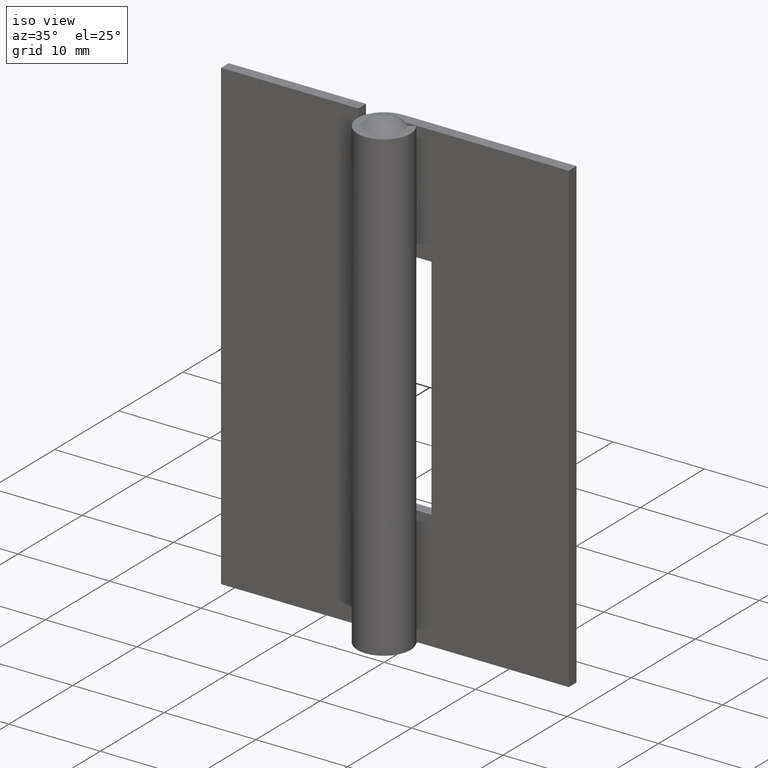
[diagram: clean part render]
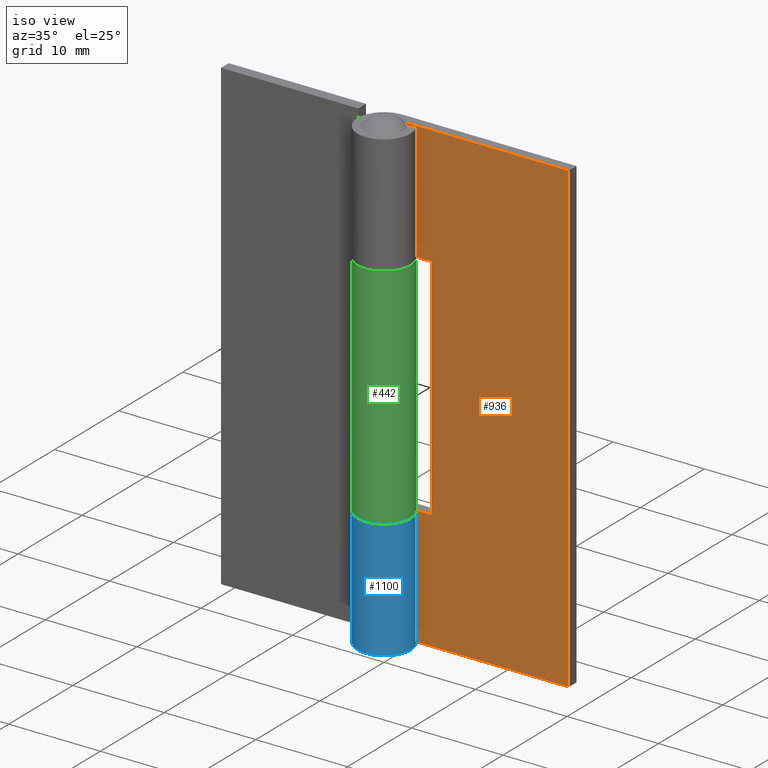
[diagram: same view with three faces highlighted in distinct colors, each labeled with its STEP entity id]
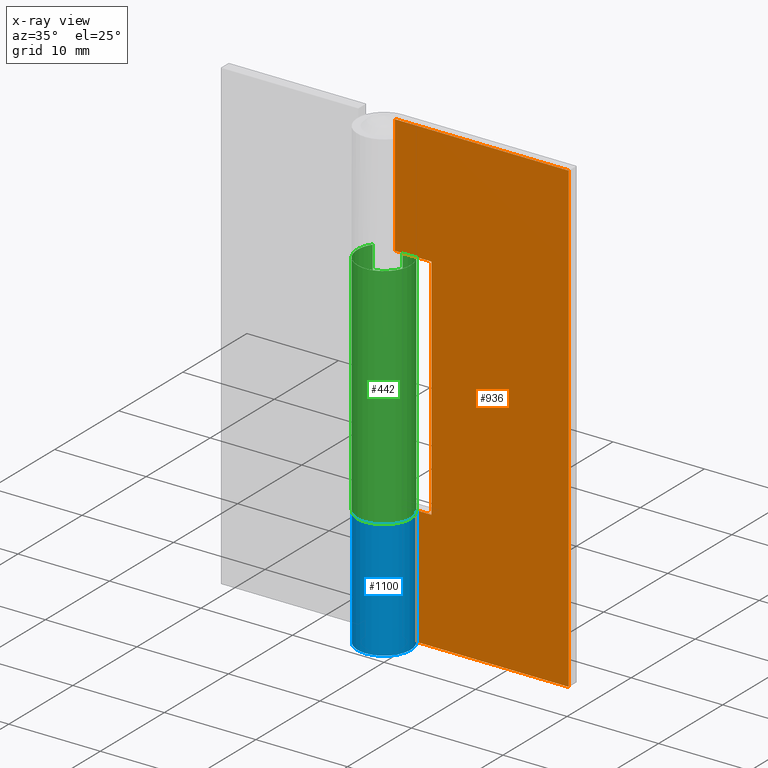
[diagram: x-ray of the same camera — body ghosted, the three highlighted faces saturated]
A machine part, iso view with three faces highlighted in distinct colors.
The next image is the same camera in x-ray (body ghosted, the three faces saturated) — at least one of them is partly hidden behind the body in this view.
Their STEP definitions:

[orange] entity #936 — the highlighted face is a freeform B-spline surface patch.
#475=CARTESIAN_POINT('',(4.0,1.700002000000030,38.0));
#476=VERTEX_POINT('',#475);
#482=CARTESIAN_POINT('',(-3.122772E-016,1.700002000000030,38.0));
#483=VERTEX_POINT('',#482);
#484=CARTESIAN_POINT('',(4.0,1.700002000000030,38.0));
#485=CARTESIAN_POINT('',(-3.122772E-016,1.700002000000030,38.0));
#486=QUASI_UNIFORM_CURVE('',1,(#484,#485),.UNSPECIFIED.,.F.,.U.);
#487=EDGE_CURVE('',#476,#483,#486,.T.);
#578=CARTESIAN_POINT('',(-3.122772E-016,1.700002000000030,13.0));
#579=VERTEX_POINT('',#578);
#610=CARTESIAN_POINT('',(4.0,1.700002000000000,13.0));
#611=VERTEX_POINT('',#610);
#612=CARTESIAN_POINT('',(-3.122772E-016,1.700002000000030,13.0));
#613=CARTESIAN_POINT('',(4.0,1.700002000000000,13.0));
#614=QUASI_UNIFORM_CURVE('',1,(#612,#613),.UNSPECIFIED.,.F.,.U.);
#615=EDGE_CURVE('',#579,#611,#614,.T.);
#672=CARTESIAN_POINT('',(4.0,1.700002000000000,13.0));
#673=CARTESIAN_POINT('',(4.0,1.700002000000030,38.0));
#674=QUASI_UNIFORM_CURVE('',1,(#672,#673),.UNSPECIFIED.,.F.,.U.);
#675=EDGE_CURVE('',#611,#476,#674,.T.);
#692=CARTESIAN_POINT('',(19.0,1.700002000000030,0.0));
#693=VERTEX_POINT('',#692);
#701=CARTESIAN_POINT('',(-3.122750E-016,1.700002000000030,0.0));
#702=VERTEX_POINT('',#701);
#703=CARTESIAN_POINT('',(-3.122750E-016,1.700002000000030,0.0));
#704=CARTESIAN_POINT('',(19.0,1.700002000000030,0.0));
#705=QUASI_UNIFORM_CURVE('',1,(#703,#704),.UNSPECIFIED.,.F.,.U.);
#706=EDGE_CURVE('',#702,#693,#705,.T.);
#798=CARTESIAN_POINT('',(19.0,1.700002000000030,51.0));
#799=VERTEX_POINT('',#798);
#854=CARTESIAN_POINT('',(-3.122750E-016,1.700002000000030,51.0));
#855=VERTEX_POINT('',#854);
#885=CARTESIAN_POINT('',(-3.122750E-016,1.700002000000030,51.0));
#886=CARTESIAN_POINT('',(19.0,1.700002000000030,51.0));
#887=QUASI_UNIFORM_CURVE('',1,(#885,#886),.UNSPECIFIED.,.F.,.U.);
#888=EDGE_CURVE('',#855,#799,#887,.T.);
#905=CARTESIAN_POINT('',(19.0,1.700002000000030,51.0));
#906=CARTESIAN_POINT('',(19.0,1.700002000000030,0.0));
#907=QUASI_UNIFORM_CURVE('',1,(#905,#906),.UNSPECIFIED.,.F.,.U.);
#908=EDGE_CURVE('',#799,#693,#907,.T.);
#913=CARTESIAN_POINT('',(-0.949049963174314,1.700002000000030,-2.547449901152113));
#914=CARTESIAN_POINT('',(-0.949049963174314,1.700002000000030,53.547451269078707));
#915=CARTESIAN_POINT('',(19.949050472794021,1.700002000000030,-2.547449901152113));
#916=CARTESIAN_POINT('',(19.949050472794021,1.700002000000030,53.547451269078707));
#917=B_SPLINE_SURFACE_WITH_KNOTS('',1,1,((#913,#915),(#914,#916)),.UNSPECIFIED.,.F.,.F.,.U.,(2,2),(2,2),(0.0,56.094901170230827),(0.0,20.898100435968342),.UNSPECIFIED.);
#918=ORIENTED_EDGE('',*,*,#615,.F.);
#919=CARTESIAN_POINT('',(-3.122772E-016,1.700002000000030,13.0));
#920=CARTESIAN_POINT('',(-3.122750E-016,1.700002000000030,0.0));
#921=QUASI_UNIFORM_CURVE('',1,(#919,#920),.UNSPECIFIED.,.F.,.U.);
#922=EDGE_CURVE('',#579,#702,#921,.T.);
#923=ORIENTED_EDGE('',*,*,#922,.T.);
#924=ORIENTED_EDGE('',*,*,#706,.T.);
#925=ORIENTED_EDGE('',*,*,#908,.F.);
#926=ORIENTED_EDGE('',*,*,#888,.F.);
#927=CARTESIAN_POINT('',(-3.122750E-016,1.700002000000030,51.0));
#928=CARTESIAN_POINT('',(-3.122772E-016,1.700002000000030,38.0));
#929=QUASI_UNIFORM_CURVE('',1,(#927,#928),.UNSPECIFIED.,.F.,.U.);
#930=EDGE_CURVE('',#855,#483,#929,.T.);
#931=ORIENTED_EDGE('',*,*,#930,.T.);
#932=ORIENTED_EDGE('',*,*,#487,.F.);
#933=ORIENTED_EDGE('',*,*,#675,.F.);
#934=EDGE_LOOP('',(#918,#923,#924,#925,#926,#931,#932,#933));
#935=FACE_OUTER_BOUND('',#934,.T.);
#936=ADVANCED_FACE('',(#935),#917,.F.);

[blue] entity #1100 — the highlighted face is a freeform B-spline surface patch.
#569=CARTESIAN_POINT('',(2.384848264526965,1.650003137932435,13.0));
#570=VERTEX_POINT('',#569);
#624=CARTESIAN_POINT('',(0.0,2.900002000000070,13.0));
#625=VERTEX_POINT('',#624);
#631=CARTESIAN_POINT('',(2.384848264526965,1.650003137932435,13.0));
#632=CARTESIAN_POINT('',(2.522004654141345,1.451888249637949,13.000000000000030));
#633=CARTESIAN_POINT('',(2.704318109931372,1.101944689802653,12.999999999999970));
#634=CARTESIAN_POINT('',(2.884073227500956,0.472520979689342,12.999999999999989));
#635=CARTESIAN_POINT('',(2.923030053144984,-0.123962480249850,13.000000000000020));
#636=CARTESIAN_POINT('',(2.824557369505076,-0.720943546939605,13.000000000000020));
#637=CARTESIAN_POINT('',(2.636508268491863,-1.252869674614439,13.0));
#638=CARTESIAN_POINT('',(2.362421354544872,-1.712994424705522,12.999999999999989));
#639=CARTESIAN_POINT('',(1.979899949458704,-2.140978547046611,13.000000000000030));
#640=CARTESIAN_POINT('',(1.565151092181875,-2.462663316129601,12.999999999999920));
#641=CARTESIAN_POINT('',(1.124272967912173,-2.685231130640672,13.000000000000149));
#642=CARTESIAN_POINT('',(0.684585380591554,-2.829432922296683,12.999999999999600));
#643=CARTESIAN_POINT('',(0.127952964714790,-2.923026046125490,13.000000000000091));
#644=CARTESIAN_POINT('',(-0.560158651346706,-2.880186473283973,13.000000000000769));
#645=CARTESIAN_POINT('',(-1.173375812541113,-2.672157819248188,12.999999999997851));
#646=CARTESIAN_POINT('',(-1.662635047320123,-2.392548799389065,13.000000000003750));
#647=CARTESIAN_POINT('',(-2.076640996064523,-2.054166158744519,12.999999999996810));
#648=CARTESIAN_POINT('',(-2.412277890825157,-1.637178526206611,13.000000000001190));
#649=CARTESIAN_POINT('',(-2.702435273693730,-1.107682361463748,12.999999999999639));
#650=CARTESIAN_POINT('',(-2.866404126051855,-0.575132793254161,13.000000000000259));
#651=CARTESIAN_POINT('',(-2.916623859229901,0.047493170191738,12.999999999999959));
#652=CARTESIAN_POINT('',(-2.860901214890689,0.569403517545651,12.999999999999689));
#653=CARTESIAN_POINT('',(-2.694872392920377,1.119125922566159,13.000000000000240));
#654=CARTESIAN_POINT('',(-2.463966485850329,1.556823420741177,12.999999999999901));
#655=CARTESIAN_POINT('',(-2.126123074486148,1.994977781280991,12.999999999999970));
#656=CARTESIAN_POINT('',(-1.707255589304016,2.375518309112994,13.000000000000171));
#657=CARTESIAN_POINT('',(-1.213042407735384,2.651213970177749,12.999999999999879));
#658=CARTESIAN_POINT('',(-0.642488822909899,2.848110470174742,12.999999999999540));
#659=CARTESIAN_POINT('',(-0.261046360258264,2.900104540280697,12.999999999999821));
#660=CARTESIAN_POINT('',(0.0,2.900002000000070,13.0));
#661=B_SPLINE_CURVE_WITH_KNOTS('',3,(#631,#632,#633,#634,#635,#636,#637,#638,#639,#640,#641,#642,#643,#644,#645,#646,#647,#648,#649,#650,#651,#652,#653,#654,#655,#656,#657,#658,#659,#660),.UNSPECIFIED.,.F.,.U.,(4,1,1,1,1,1,1,1,1,1,1,1,1,1,1,1,1,1,1,1,1,1,1,1,1,1,1,4),(0.000000272177333,0.722856359483986,1.174661264285891,1.957774657778744,2.499938527510317,2.981840984149912,3.644501015760840,4.096258847220261,4.698643919032405,5.210685088029763,5.572122806673116,6.084158924861361,6.897392376174018,7.620262009487864,8.011783295668991,8.584081840311317,9.216585581302088,9.608148042508486,10.391261620526970,10.873193185153690,11.475570283804871,11.957454938321851,12.589985009359809,12.951419821255939,13.614054245693319,14.276697991546451,14.638132889093511,15.421227777932980),.UNSPECIFIED.);
#662=EDGE_CURVE('',#570,#625,#661,.T.);
#742=CARTESIAN_POINT('',(2.384848264526965,1.650003137932435,0.0));
#743=VERTEX_POINT('',#742);
#749=CARTESIAN_POINT('',(0.0,2.900002000000000,0.0));
#750=VERTEX_POINT('',#749);
#751=CARTESIAN_POINT('',(2.384848264526965,1.650003137932435,0.0));
#752=CARTESIAN_POINT('',(2.476248516181824,1.517914872426091,0.0));
#753=CARTESIAN_POINT('',(2.642047713739686,1.229757241764947,0.0));
#754=CARTESIAN_POINT('',(2.832588220481948,0.709183071896211,0.0));
#755=CARTESIAN_POINT('',(2.914695347756784,0.159470462831118,0.0));
#756=CARTESIAN_POINT('',(2.889941736678847,-0.343662589366263,0.0));
#757=CARTESIAN_POINT('',(2.802468493754595,-0.787810959473807,0.0));
#758=CARTESIAN_POINT('',(2.662681967652082,-1.176686683254590,0.0));
#759=CARTESIAN_POINT('',(2.433028957770641,-1.601418420626528,0.0));
#760=CARTESIAN_POINT('',(2.100495222466138,-2.032950684054843,0.0));
#761=CARTESIAN_POINT('',(1.665954670172693,-2.395990821655459,0.0));
#762=CARTESIAN_POINT('',(1.145843068862508,-2.682766988986356,0.0));
#763=CARTESIAN_POINT('',(0.636939538653246,-2.849700390473144,0.0));
#764=CARTESIAN_POINT('',(0.026118677934156,-2.919882314688282,0.0));
#765=CARTESIAN_POINT('',(-0.497319053244409,-2.873661283492589,0.0));
#766=CARTESIAN_POINT('',(-1.001638277680676,-2.734119136425154,0.0));
#767=CARTESIAN_POINT('',(-1.469811591909613,-2.521902494035725,0.0));
#768=CARTESIAN_POINT('',(-1.937349691726799,-2.186024932020696,0.0));
#769=CARTESIAN_POINT('',(-2.291102559295212,-1.798622506761835,0.0));
#770=CARTESIAN_POINT('',(-2.560865011447439,-1.386078654085119,0.0));
#771=CARTESIAN_POINT('',(-2.751415121767068,-0.963170232193756,0.0));
#772=CARTESIAN_POINT('',(-2.879377815744836,-0.455153260174542,0.0));
#773=CARTESIAN_POINT('',(-2.911194328765773,-0.002497016112123,0.0));
#774=CARTESIAN_POINT('',(-2.869215991918490,0.518738082882767,0.0));
#775=CARTESIAN_POINT('',(-2.715075346070117,1.105514060467119,0.0));
#776=CARTESIAN_POINT('',(-2.353124019961381,1.750519963447755,0.0));
#777=CARTESIAN_POINT('',(-1.866517497815842,2.251146096457574,0.0));
#778=CARTESIAN_POINT('',(-1.308238034590269,2.614079985542044,0.0));
#779=CARTESIAN_POINT('',(-0.692724518765955,2.844572663039188,0.0));
#780=CARTESIAN_POINT('',(-0.230911134999020,2.900043852982434,0.0));
#781=CARTESIAN_POINT('',(0.0,2.900002000000000,0.0));
#782=B_SPLINE_CURVE_WITH_KNOTS('',3,(#751,#752,#753,#754,#755,#756,#757,#758,#759,#760,#761,#762,#763,#764,#765,#766,#767,#768,#769,#770,#771,#772,#773,#774,#775,#776,#777,#778,#779,#780,#781),.UNSPECIFIED.,.F.,.U.,(4,1,1,1,1,1,1,1,1,1,1,1,1,1,1,1,1,1,1,1,1,1,1,1,1,1,1,1,4),(0.000000272180504,0.481884832665060,0.993928442095118,1.656573959030377,2.138496174054120,2.499938527511906,3.011980082691116,3.373405030596885,3.945656083494594,4.638415709727097,5.060081769408294,5.722722352416097,6.234756393767311,6.897392376174297,7.288947521058447,7.800965549061969,8.433483122362516,9.005746068919063,9.367187141595760,9.909348689018266,10.391261620527059,10.933424002710231,11.264752534557450,11.957454938321890,12.740580785892661,13.463454617522840,14.035729159354970,14.728499760313120,15.421227777933000),.UNSPECIFIED.);
#783=EDGE_CURVE('',#743,#750,#782,.T.);
#1025=CARTESIAN_POINT('',(2.384848264526965,1.650003137932435,13.0));
#1026=CARTESIAN_POINT('',(2.384848264526965,1.650003137932435,0.0));
#1027=QUASI_UNIFORM_CURVE('',1,(#1025,#1026),.UNSPECIFIED.,.F.,.U.);
#1028=EDGE_CURVE('',#570,#743,#1027,.T.);
#1068=CARTESIAN_POINT('',(0.025306970398353,2.899891576809942,13.324999999999999));
#1069=CARTESIAN_POINT('',(0.025306970398353,2.899891576809942,-0.333124999999999));
#1070=CARTESIAN_POINT('',(-3.598668132338351,2.931517528408523,13.325000000000003));
#1071=CARTESIAN_POINT('',(-3.598668132338351,2.931517528408523,-0.333124999999999));
#1072=CARTESIAN_POINT('',(-2.834864105768699,-0.611193178813562,13.324999999999999));
#1073=CARTESIAN_POINT('',(-2.834864105768699,-0.611193178813562,-0.333124999999999));
#1074=CARTESIAN_POINT('',(-2.071060079199047,-4.153903886035647,13.325000000000003));
#1075=CARTESIAN_POINT('',(-2.071060079199047,-4.153903886035647,-0.333124999999999));
#1076=CARTESIAN_POINT('',(1.217943231346909,-2.631848378083404,13.324999999999999));
#1077=CARTESIAN_POINT('',(1.217943231346909,-2.631848378083404,-0.333124999999999));
#1078=CARTESIAN_POINT('',(4.506946541892866,-1.109792870131161,13.325000000000003));
#1079=CARTESIAN_POINT('',(4.506946541892866,-1.109792870131161,-0.333124999999999));
#1080=CARTESIAN_POINT('',(2.300726273551261,1.765409361648148,13.324999999999999));
#1081=CARTESIAN_POINT('',(2.300726273551261,1.765409361648148,-0.333124999999999));
#1089=(BOUNDED_SURFACE()B_SPLINE_SURFACE(1,2,((#1068,#1070,#1072,#1074,#1076,#1078,#1080),(#1069,#1071,#1073,#1075,#1077,#1079,#1081)),.UNSPECIFIED.,.F.,.F.,.U.)B_SPLINE_SURFACE_WITH_KNOTS((2,2),(3,2,2,3),(0.0,13.658125000000000),(0.0,5.574397452177710,11.148794904355420,16.723192356533129),.UNSPECIFIED.)GEOMETRIC_REPRESENTATION_ITEM()RATIONAL_B_SPLINE_SURFACE(((1.0,0.624788514543960,1.0,0.624788514543960,1.0,0.624788514543960,1.0),(1.0,0.624788514543960,1.0,0.624788514543960,1.0,0.624788514543960,1.0)))REPRESENTATION_ITEM('')SURFACE());
#1090=ORIENTED_EDGE('',*,*,#1028,.F.);
#1091=ORIENTED_EDGE('',*,*,#662,.T.);
#1092=CARTESIAN_POINT('',(0.0,2.900002000000070,13.0));
#1093=CARTESIAN_POINT('',(0.0,2.900002000000000,0.0));
#1094=QUASI_UNIFORM_CURVE('',1,(#1092,#1093),.UNSPECIFIED.,.F.,.U.);
#1095=EDGE_CURVE('',#625,#750,#1094,.T.);
#1096=ORIENTED_EDGE('',*,*,#1095,.T.);
#1097=ORIENTED_EDGE('',*,*,#783,.F.);
#1098=EDGE_LOOP('',(#1090,#1091,#1096,#1097));
#1099=FACE_OUTER_BOUND('',#1098,.T.);
#1100=ADVANCED_FACE('',(#1099),#1089,.T.);

[green] entity #442 — the highlighted face is a freeform B-spline surface patch.
#12=CARTESIAN_POINT('',(0.0,2.900002000000070,38.0));
#13=VERTEX_POINT('',#12);
#66=CARTESIAN_POINT('',(-2.384848264526945,1.650003137932465,38.0));
#67=VERTEX_POINT('',#66);
#73=CARTESIAN_POINT('',(0.0,2.900002000000070,38.0));
#74=CARTESIAN_POINT('',(0.291166337002669,2.900137493472093,37.999999999999957));
#75=CARTESIAN_POINT('',(0.803112194503735,2.822213665019048,38.000000000000043));
#76=CARTESIAN_POINT('',(1.478079936286260,2.524494890665991,38.000000000000099));
#77=CARTESIAN_POINT('',(1.930640507758292,2.184714924178322,37.999999999999737));
#78=CARTESIAN_POINT('',(2.294155327434087,1.794714534067778,38.000000000000639));
#79=CARTESIAN_POINT('',(2.619465617052086,1.308311624111430,37.999999999999581));
#80=CARTESIAN_POINT('',(2.842229264495914,0.698884934894157,38.000000000000149));
#81=CARTESIAN_POINT('',(2.913791183430062,0.087936644058357,37.999999999999993));
#82=CARTESIAN_POINT('',(2.885483415530531,-0.384714937145882,37.999999999999950));
#83=CARTESIAN_POINT('',(2.774146678548102,-0.906301186601767,38.000000000000533));
#84=CARTESIAN_POINT('',(2.556133084220147,-1.418302737506021,37.999999999998252));
#85=CARTESIAN_POINT('',(2.180783924816634,-1.943306844636917,38.000000000003560));
#86=CARTESIAN_POINT('',(1.756366383624696,-2.332728731935393,37.999999999994010));
#87=CARTESIAN_POINT('',(1.203070224293289,-2.664336771613459,38.000000000002622));
#88=CARTESIAN_POINT('',(0.588369358220570,-2.869301155030184,38.000000000000817));
#89=CARTESIAN_POINT('',(-0.016139321310385,-2.916311893880703,37.999999999999041));
#90=CARTESIAN_POINT('',(-0.566616374548497,-2.858839000869016,38.000000000000057));
#91=CARTESIAN_POINT('',(-1.042577485785974,-2.724327534468003,38.000000000000057));
#92=CARTESIAN_POINT('',(-1.601667030525805,-2.445754997092468,38.000000000000007));
#93=CARTESIAN_POINT('',(-2.058390977427055,-2.076064410288874,38.000000000000028));
#94=CARTESIAN_POINT('',(-2.453615995402300,-1.579409573240329,37.999999999999993));
#95=CARTESIAN_POINT('',(-2.677518137435248,-1.149449919369778,38.000000000000021));
#96=CARTESIAN_POINT('',(-2.829643571552113,-0.680756590002729,38.000000000000369));
#97=CARTESIAN_POINT('',(-2.922721387466545,-0.134262591156721,37.999999999997769));
#98=CARTESIAN_POINT('',(-2.883830253801675,0.513446640998817,38.000000000006217));
#99=CARTESIAN_POINT('',(-2.684272462754748,1.149087991867134,37.999999999989257));
#100=CARTESIAN_POINT('',(-2.493396127847649,1.493143551344255,38.000000000012243));
#101=CARTESIAN_POINT('',(-2.384848264526945,1.650003137932465,38.0));
#102=B_SPLINE_CURVE_WITH_KNOTS('',3,(#73,#74,#75,#76,#77,#78,#79,#80,#81,#82,#83,#84,#85,#86,#87,#88,#89,#90,#91,#92,#93,#94,#95,#96,#97,#98,#99,#100,#101),.UNSPECIFIED.,.F.,.U.,(4,1,1,1,1,1,1,1,1,1,1,1,1,1,1,1,1,1,1,1,1,1,1,1,1,1,4),(0.000000272179543,0.873459938834690,1.536098682731698,2.198735518556589,2.560176569767773,3.132439701229586,3.945656083494413,4.487818734083856,4.969716249472358,5.361286538898018,6.084158924861669,6.626324710057725,7.288947521058484,7.800965549062057,8.553942585005704,9.216585581302493,9.608148042508903,10.210551676676371,10.692453989038700,11.475570283805199,11.957454938322190,12.589985009360049,12.921290729084760,13.433334279817300,14.246568195250250,14.848961216598839,15.421227777933019),.UNSPECIFIED.);
#103=EDGE_CURVE('',#13,#67,#102,.T.);
#141=CARTESIAN_POINT('',(0.0,2.900002000000000,13.0));
#142=VERTEX_POINT('',#141);
#143=CARTESIAN_POINT('',(-2.384848264526945,1.650003137932465,13.0));
#144=VERTEX_POINT('',#143);
#145=CARTESIAN_POINT('',(0.0,2.900002000000000,13.0));
#146=CARTESIAN_POINT('',(0.220879903242222,2.900048171246895,12.999999999999989));
#147=CARTESIAN_POINT('',(0.652567993800213,2.850442078657858,13.000000000000050));
#148=CARTESIAN_POINT('',(1.252953136013363,2.639749448934822,12.999999999999940));
#149=CARTESIAN_POINT('',(1.726105553103173,2.349326160448150,13.000000000000091));
#150=CARTESIAN_POINT('',(2.154839529266247,1.967960591170811,12.999999999999909));
#151=CARTESIAN_POINT('',(2.492145511171951,1.525788868740023,13.000000000000121));
#152=CARTESIAN_POINT('',(2.723393501026247,1.032805274449155,13.000000000000011));
#153=CARTESIAN_POINT('',(2.855815871560877,0.568320439774322,12.999999999999901));
#154=CARTESIAN_POINT('',(2.923332996580110,0.018097776152739,13.000000000000080));
#155=CARTESIAN_POINT('',(2.865971528170756,-0.576488192783013,12.999999999999980));
#156=CARTESIAN_POINT('',(2.694547296622079,-1.103686099404143,13.000000000000060));
#157=CARTESIAN_POINT('',(2.480327511558075,-1.525342499461150,12.999999999999631));
#158=CARTESIAN_POINT('',(2.173345351723807,-1.950144280260875,13.000000000001281));
#159=CARTESIAN_POINT('',(1.756365869863522,-2.332727314337526,12.999999999998350));
#160=CARTESIAN_POINT('',(1.203070751836364,-2.664337453447605,13.000000000000890));
#161=CARTESIAN_POINT('',(0.578764006606976,-2.872495047351069,13.000000000000540));
#162=CARTESIAN_POINT('',(-0.167551915110935,-2.926733023364101,12.999999999999520));
#163=CARTESIAN_POINT('',(-0.875030168737759,-2.796576725303667,13.000000000000201));
#164=CARTESIAN_POINT('',(-1.480927932650714,-2.517759276799070,12.999999999999970));
#165=CARTESIAN_POINT('',(-1.950401469644100,-2.168985516920087,13.0));
#166=CARTESIAN_POINT('',(-2.346910971013567,-1.739047404527627,13.000000000000011));
#167=CARTESIAN_POINT('',(-2.636505191804095,-1.252867601211932,13.0));
#168=CARTESIAN_POINT('',(-2.848126466782642,-0.654453502703659,13.000000000000011));
#169=CARTESIAN_POINT('',(-2.919924492086680,-0.092060157238846,12.999999999999980));
#170=CARTESIAN_POINT('',(-2.871143062714157,0.510220234664354,13.000000000000060));
#171=CARTESIAN_POINT('',(-2.719205638336166,1.075612423090693,13.000000000000480));
#172=CARTESIAN_POINT('',(-2.516278662441421,1.460141684004970,12.999999999998151));
#173=CARTESIAN_POINT('',(-2.384848264526945,1.650003137932465,13.0));
#174=B_SPLINE_CURVE_WITH_KNOTS('',3,(#145,#146,#147,#148,#149,#150,#151,#152,#153,#154,#155,#156,#157,#158,#159,#160,#161,#162,#163,#164,#165,#166,#167,#168,#169,#170,#171,#172,#173),.UNSPECIFIED.,.F.,.U.,(4,1,1,1,1,1,1,1,1,1,1,1,1,1,1,1,1,1,1,1,1,1,1,1,1,1,4),(0.000000272179268,0.662630285206260,1.295132821573443,1.897534912176200,2.319211085665748,3.011980082690425,3.554139384572647,3.945656083494058,4.457675352823955,5.210685088029889,5.722722352415754,6.114283301483868,6.626324710057457,7.288947521058189,7.800965549061755,8.553942585005423,9.246711693613925,10.029824137676210,10.692453989038670,11.234606288426811,11.776728256989720,12.439388415816969,12.921290729084770,13.674292454158451,14.126096336639190,14.728499760313159,15.421227777933019),.UNSPECIFIED.);
#175=EDGE_CURVE('',#142,#144,#174,.T.);
#399=CARTESIAN_POINT('',(-2.384848264526945,1.650003137932465,38.0));
#400=CARTESIAN_POINT('',(-2.384848264526945,1.650003137932465,13.0));
#401=QUASI_UNIFORM_CURVE('',1,(#399,#400),.UNSPECIFIED.,.F.,.U.);
#402=EDGE_CURVE('',#67,#144,#401,.T.);
#410=CARTESIAN_POINT('',(-2.331186503503651,1.724987271224463,38.625000000000007));
#411=CARTESIAN_POINT('',(-2.331186503503651,1.724987271224463,12.359375000000000));
#412=CARTESIAN_POINT('',(-4.525880422342402,-1.240971335117443,38.625000000000007));
#413=CARTESIAN_POINT('',(-4.525880422342402,-1.240971335117443,12.359375000000000));
#414=CARTESIAN_POINT('',(-1.125351109445691,-2.672750732947864,38.625000000000007));
#415=CARTESIAN_POINT('',(-1.125351109445691,-2.672750732947864,12.359375000000000));
#416=CARTESIAN_POINT('',(2.275178203451020,-4.104530130778284,38.625000000000007));
#417=CARTESIAN_POINT('',(2.275178203451020,-4.104530130778284,12.359375000000000));
#418=CARTESIAN_POINT('',(2.862966402498609,-0.461990236009552,38.625000000000007));
#419=CARTESIAN_POINT('',(2.862966402498609,-0.461990236009552,12.359375000000000));
#420=CARTESIAN_POINT('',(3.450754601546200,3.180549658759178,38.625000000000007));
#421=CARTESIAN_POINT('',(3.450754601546200,3.180549658759178,12.359375000000000));
#422=CARTESIAN_POINT('',(-0.227531534528940,2.891062261660737,38.625000000000007));
#423=CARTESIAN_POINT('',(-0.227531534528940,2.891062261660737,12.359375000000000));
#431=(BOUNDED_SURFACE()B_SPLINE_SURFACE(1,2,((#410,#412,#414,#416,#418,#420,#422),(#411,#413,#415,#417,#419,#421,#423)),.UNSPECIFIED.,.F.,.F.,.U.)B_SPLINE_SURFACE_WITH_KNOTS((2,2),(3,2,2,3),(0.0,26.265625000000011),(0.0,5.636831740681012,11.273663481362020,16.910495222043039),.UNSPECIFIED.)GEOMETRIC_REPRESENTATION_ITEM()RATIONAL_B_SPLINE_SURFACE(((1.0,0.617951097721073,1.0,0.617951097721073,1.0,0.617951097721073,1.0),(1.0,0.617951097721073,1.0,0.617951097721073,1.0,0.617951097721073,1.0)))REPRESENTATION_ITEM('')SURFACE());
#432=CARTESIAN_POINT('',(0.0,2.900002000000070,38.0));
#433=CARTESIAN_POINT('',(0.0,2.900002000000000,13.0));
#434=QUASI_UNIFORM_CURVE('',1,(#432,#433),.UNSPECIFIED.,.F.,.U.);
#435=EDGE_CURVE('',#13,#142,#434,.T.);
#436=ORIENTED_EDGE('',*,*,#435,.F.);
#437=ORIENTED_EDGE('',*,*,#103,.T.);
#438=ORIENTED_EDGE('',*,*,#402,.T.);
#439=ORIENTED_EDGE('',*,*,#175,.F.);
#440=EDGE_LOOP('',(#436,#437,#438,#439));
#441=FACE_OUTER_BOUND('',#440,.T.);
#442=ADVANCED_FACE('',(#441),#431,.T.);